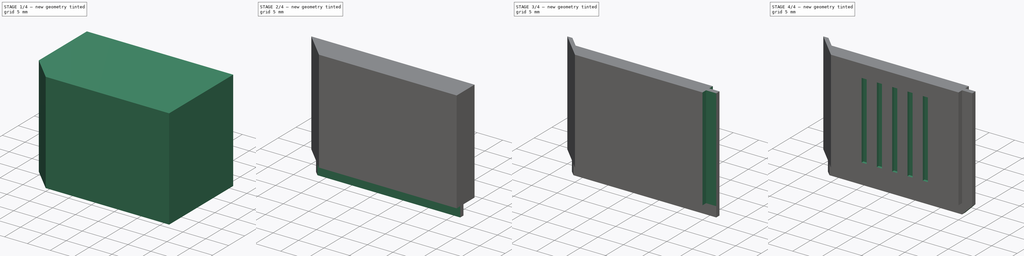
[diagram: build sequence overview — one tinted view per stage of 4, left to right]
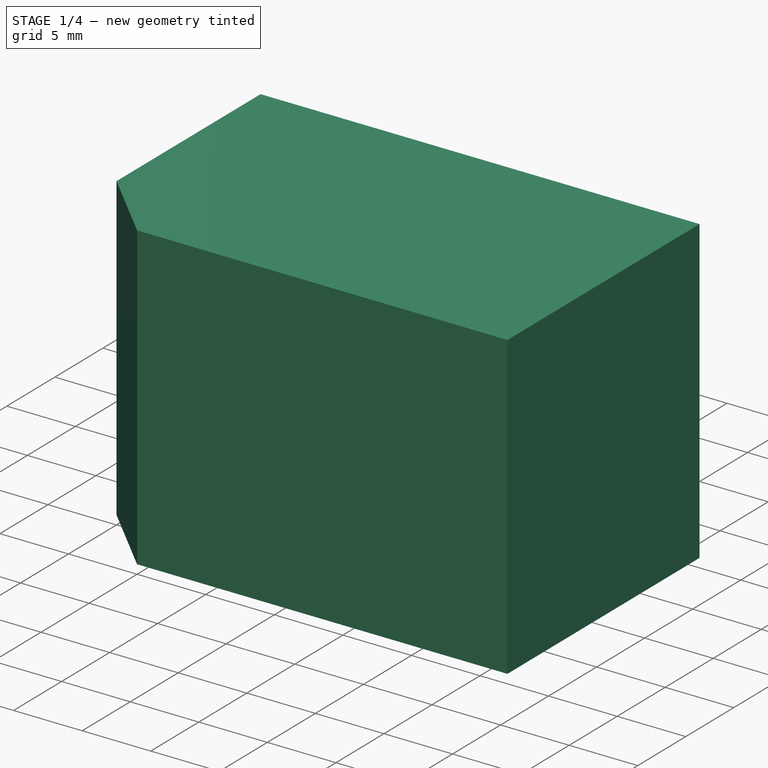
[diagram: stage 1 of 4 — iso view after this stage's code; geometry added in this stage tinted green]
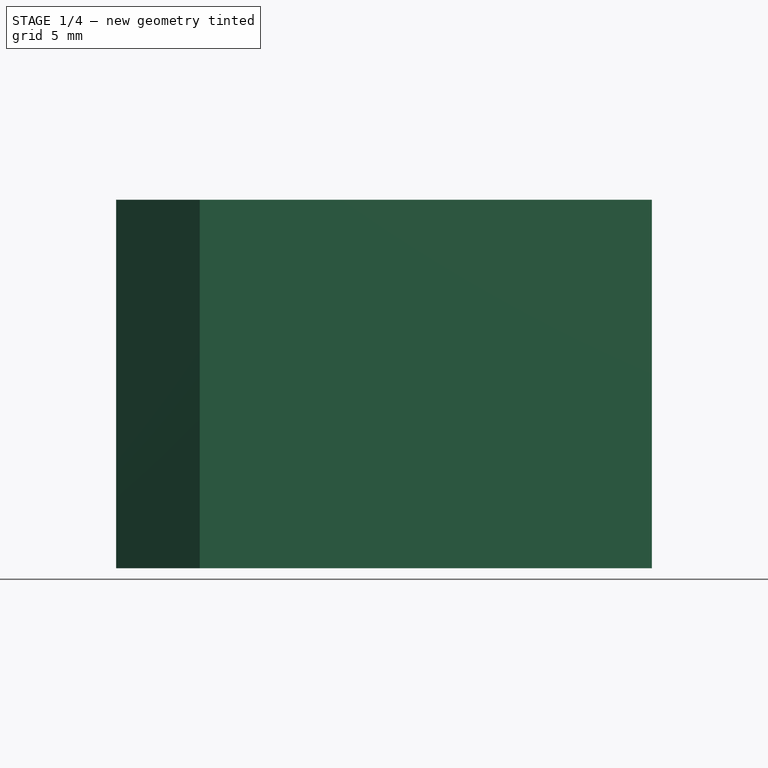
[diagram: stage 1 of 4 — front view after this stage's code; geometry added in this stage tinted green]
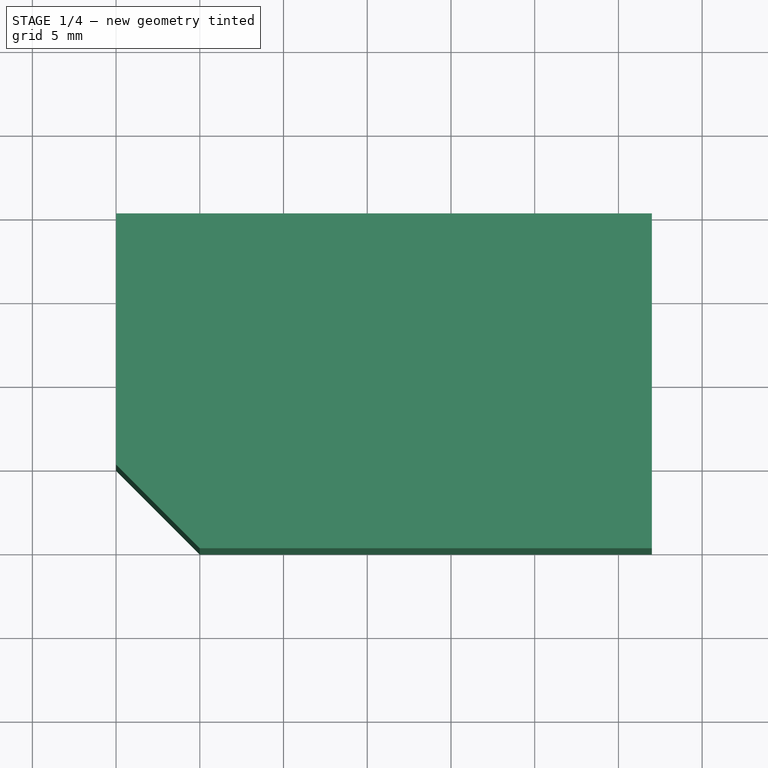
[diagram: stage 1 of 4 — top view after this stage's code; geometry added in this stage tinted green]
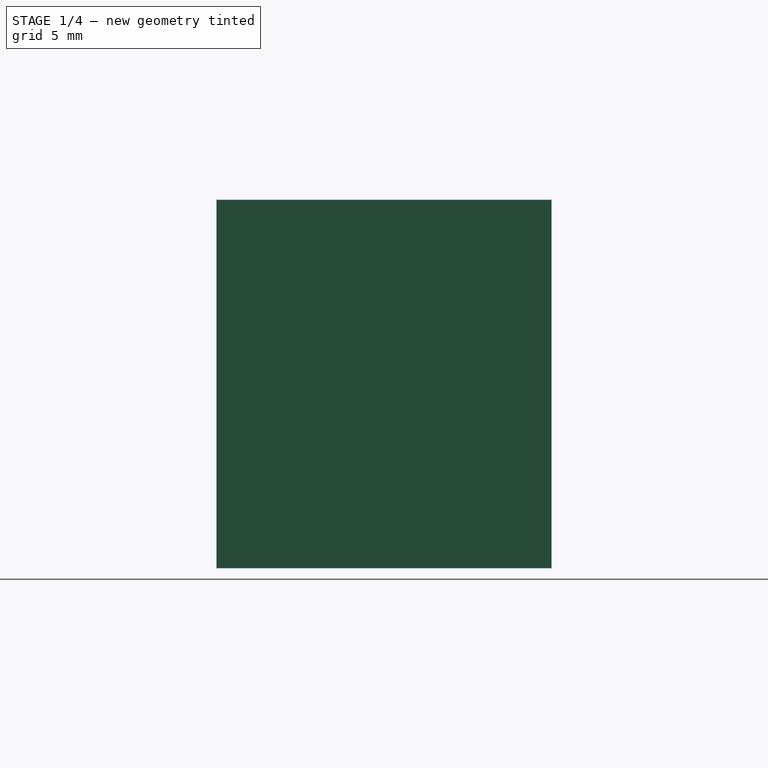
[diagram: stage 1 of 4 — right view after this stage's code; geometry added in this stage tinted green]
FCSTD DOCUMENT  (FreeCAD 0.16R6712 (Git))
Label: battery-door
License: All rights reserved
LicenseURL: http://en.wikipedia.org/wiki/All_rights_reserved
objects: Sketcher::SketchObject×8, PartDesign::Pocket×6, PartDesign::Pad×2, PartDesign::Chamfer×2
note: 26 computed .brp shape members not serialized (recipe doc carries the construction recipe); baked Part::Feature solids carry a one-line shape summary decoded from their .brp

FEATURE [Sketcher::SketchObject] Sketch
  sketch-geometry (4):
    g0: LineSegment StartX=0 StartY=0 StartZ=0 EndX=32 EndY=0 EndZ=0
    g1: LineSegment StartX=32 StartY=0 StartZ=0 EndX=32 EndY=-20 EndZ=0
    g2: LineSegment StartX=32 StartY=-20 StartZ=0 EndX=0 EndY=-20 EndZ=0
    g3: LineSegment StartX=0 StartY=-20 StartZ=0 EndX=0 EndY=0 EndZ=0
  constraints (11):
    c: Coincident(g0,g1)
    c: Coincident(g1,g2)
    c: Coincident(g2,g3)
    c: Coincident(g3,g0)
    c: Horizontal(g0)
    c: Horizontal(g2)
    c: Vertical(g1)
    c: Vertical(g3)
    c: Coincident(g0,g-1)
    c: DistanceX(g0,g0) = 32
    c: DistanceY(g3,g3) = 20
FEATURE [PartDesign::Pad] Pad
  Length = 22
  Length2 = 100
  Sketch = -> Sketch
  Type = 0
FEATURE [PartDesign::Chamfer] Chamfer
  Base = -> Pad [Edge8]
  Size = 5
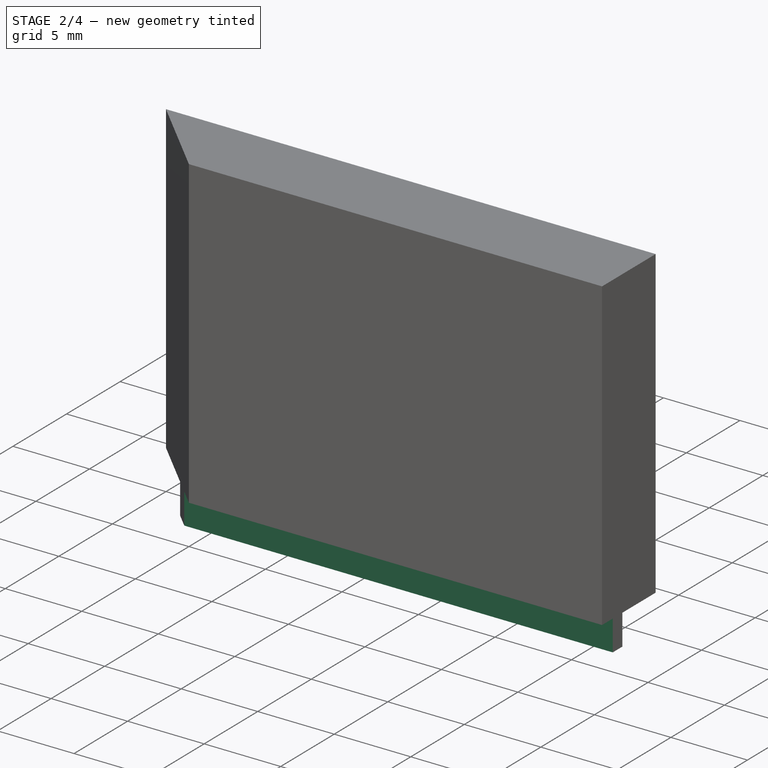
[diagram: stage 2 of 4 — iso view after this stage's code; geometry added in this stage tinted green]
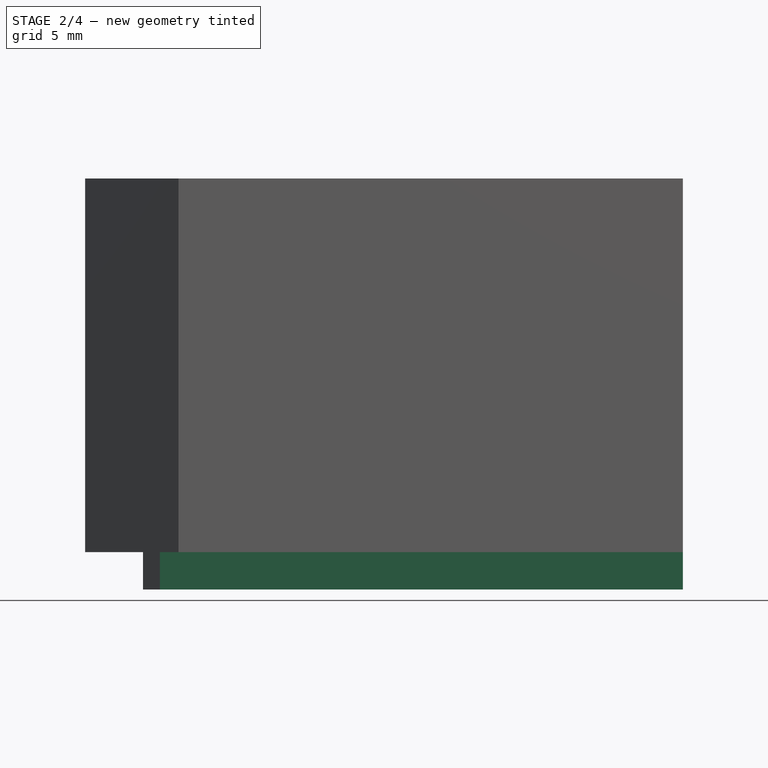
[diagram: stage 2 of 4 — front view after this stage's code; geometry added in this stage tinted green]
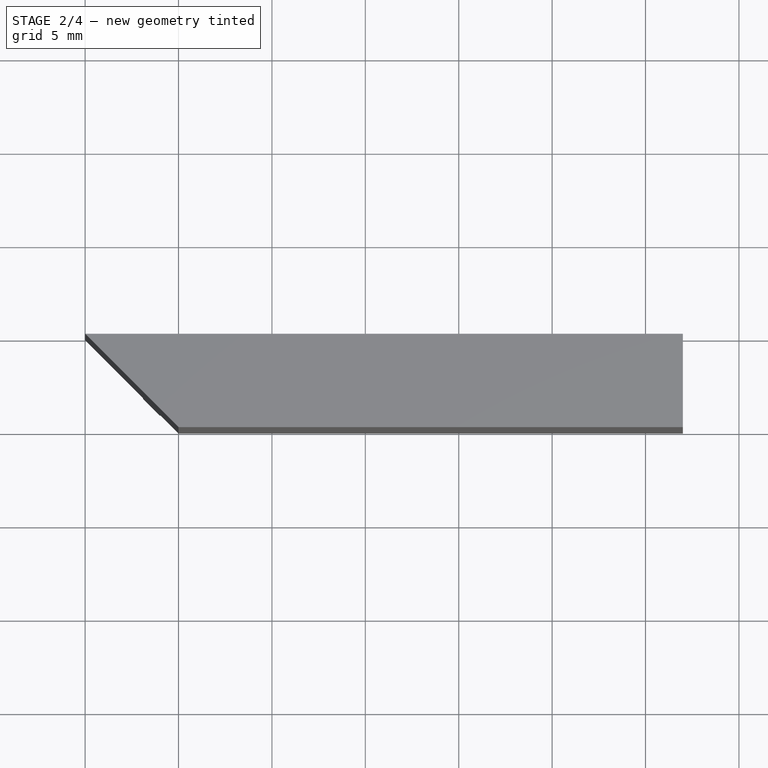
[diagram: stage 2 of 4 — top view after this stage's code; geometry added in this stage tinted green]
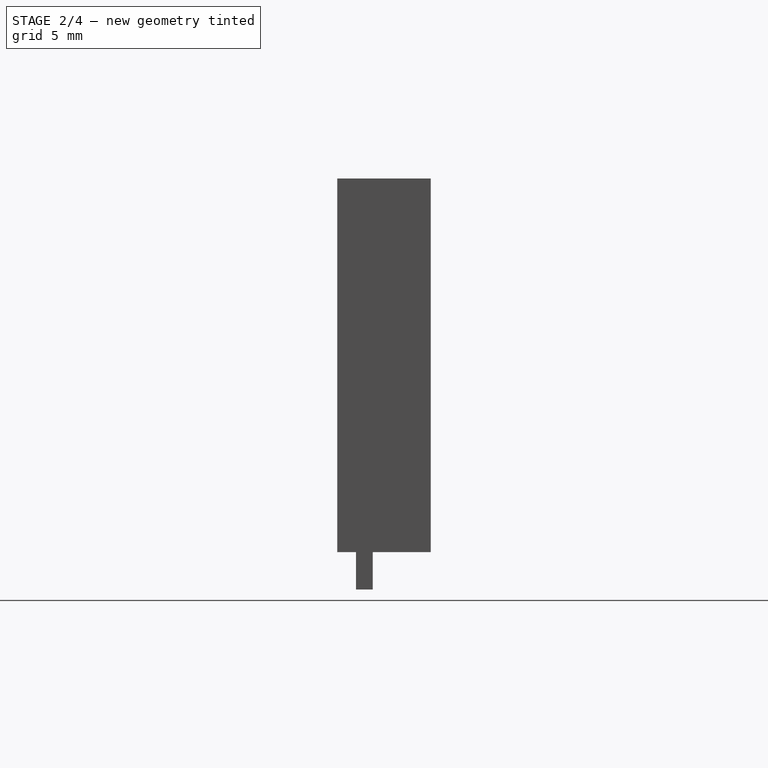
[diagram: stage 2 of 4 — right view after this stage's code; geometry added in this stage tinted green]
FEATURE [Sketcher::SketchObject] Sketch001
  ExternalGeometry = -> [Chamfer]
  Placement = pos=(0,0,22) rot=(0,0,1;0rad)
  Support = -> Chamfer [Face5]
  sketch-geometry (4):
    g0: LineSegment StartX=0 StartY=0 StartZ=0 EndX=32 EndY=0 EndZ=0
    g1: LineSegment StartX=32 StartY=0 StartZ=0 EndX=32 EndY=-15 EndZ=0
    g2: LineSegment StartX=32 StartY=-15 StartZ=0 EndX=0 EndY=-15 EndZ=0
    g3: LineSegment StartX=0 StartY=-15 StartZ=0 EndX=0 EndY=0 EndZ=0
  constraints (11):
    c: Coincident(g0,g1)
    c: Coincident(g1,g2)
    c: Coincident(g2,g3)
    c: Coincident(g3,g0)
    c: Horizontal(g0)
    c: Horizontal(g2)
    c: Vertical(g1)
    c: Vertical(g3)
    c: Coincident(g0,g-1)
    c: PointOnObject(g-3,g1)
    c: Coincident(g2,g-4)
FEATURE [PartDesign::Pocket] Pocket
  Length = 22
  Sketch = -> Sketch001
  Type = 0
FEATURE [Sketcher::SketchObject] Sketch002
  ExternalGeometry = -> [Pocket]
  Placement = pos=(0,0,0) rot=(1,0,0;3.14159rad)
  Support = -> Pocket [Face2]
  sketch-geometry (4):
    g0: LineSegment StartX=32 StartY=20 StartZ=0 EndX=0 EndY=20 EndZ=0
    g1: LineSegment StartX=0 StartY=20 StartZ=0 EndX=0 EndY=19 EndZ=0
    g2: LineSegment StartX=0 StartY=19 StartZ=0 EndX=32 EndY=19 EndZ=0
    g3: LineSegment StartX=32 StartY=19 StartZ=0 EndX=32 EndY=20 EndZ=0
  constraints (11):
    c: Coincident(g0,g1)
    c: Coincident(g1,g2)
    c: Coincident(g2,g3)
    c: Coincident(g3,g0)
    c: Horizontal(g0)
    c: Horizontal(g2)
    c: Vertical(g1)
    c: Vertical(g3)
    c: Coincident(g0,g-3)
    c: PointOnObject(g1,g-2)
    c: DistanceY(g1,g1) = 1
FEATURE [PartDesign::Pocket] Pocket001
  Length = 2
  Sketch = -> Sketch002
  Type = 0
FEATURE [Sketcher::SketchObject] Sketch003
  ExternalGeometry = -> [Pocket001]
  Placement = pos=(0,0,0) rot=(1,0,0;3.14159rad)
  Support = -> Pocket001 [Face7]
  sketch-geometry (4):
    g0: LineSegment StartX=32 StartY=18.1 StartZ=0 EndX=0 EndY=18.1 EndZ=0
    g1: LineSegment StartX=0 StartY=18.1 StartZ=0 EndX=0 EndY=15 EndZ=0
    g2: LineSegment StartX=0 StartY=15 StartZ=0 EndX=32 EndY=15 EndZ=0
    g3: LineSegment StartX=32 StartY=15 StartZ=0 EndX=32 EndY=18.1 EndZ=0
  constraints (12):
    c: Coincident(g0,g1)
    c: Coincident(g1,g2)
    c: Coincident(g2,g3)
    c: Coincident(g3,g0)
    c: Horizontal(g0)
    c: Horizontal(g2)
    c: Vertical(g1)
    c: Vertical(g3)
    c: PointOnObject(g0,g-3)
    c: PointOnObject(g1,g-2)
    c: Coincident(g-3,g2)
    c: DistanceY(g0,g-3) = 0.9
FEATURE [PartDesign::Pocket] Pocket002
  Length = 2
  Sketch = -> Sketch003
  Type = 0
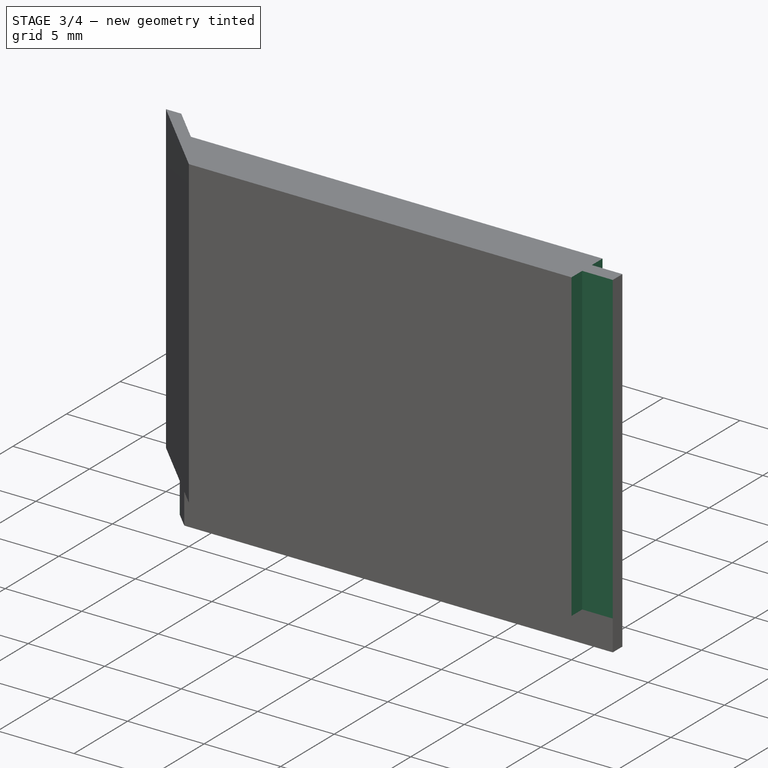
[diagram: stage 3 of 4 — iso view after this stage's code; geometry added in this stage tinted green]
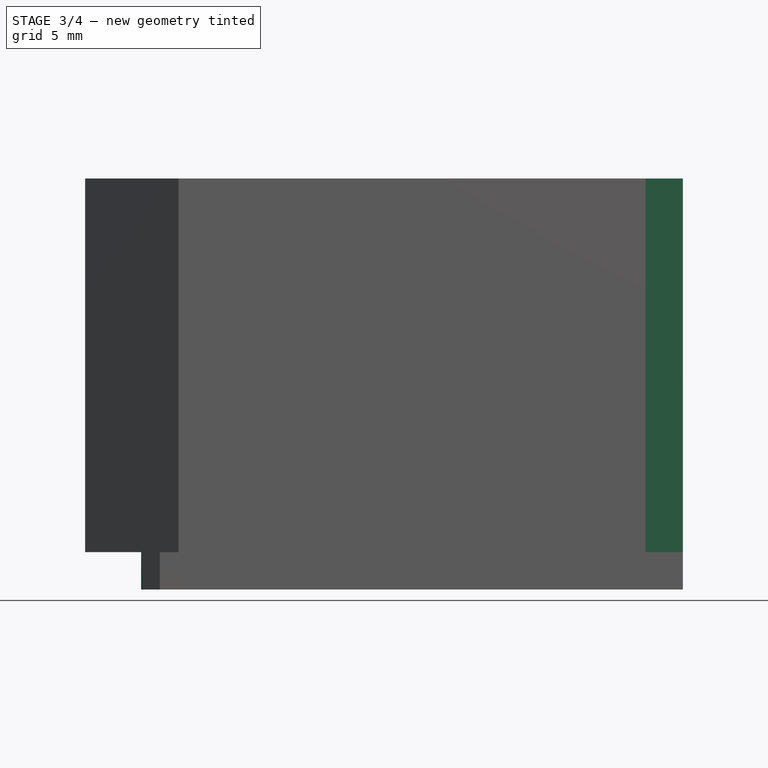
[diagram: stage 3 of 4 — front view after this stage's code; geometry added in this stage tinted green]
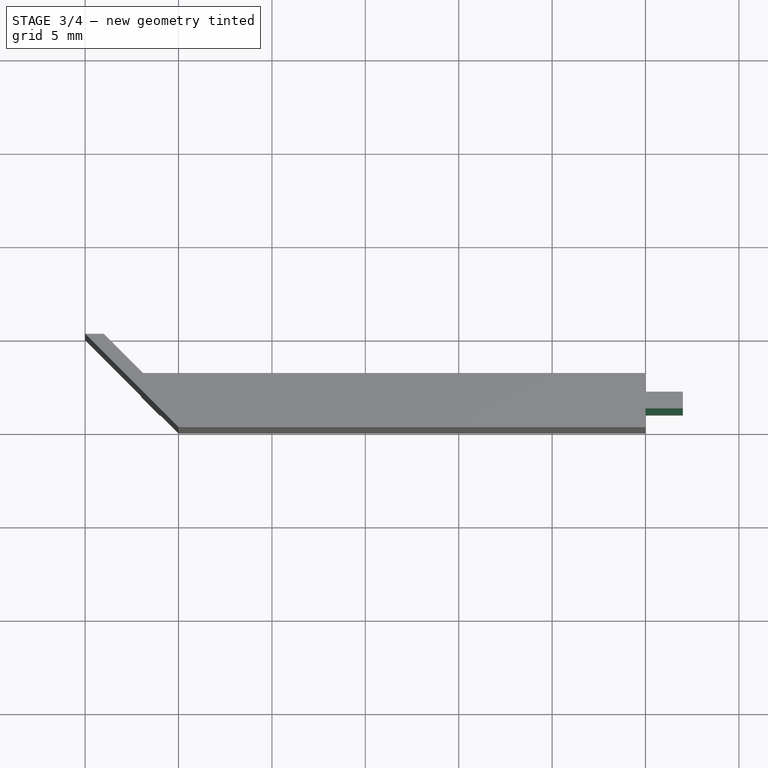
[diagram: stage 3 of 4 — top view after this stage's code; geometry added in this stage tinted green]
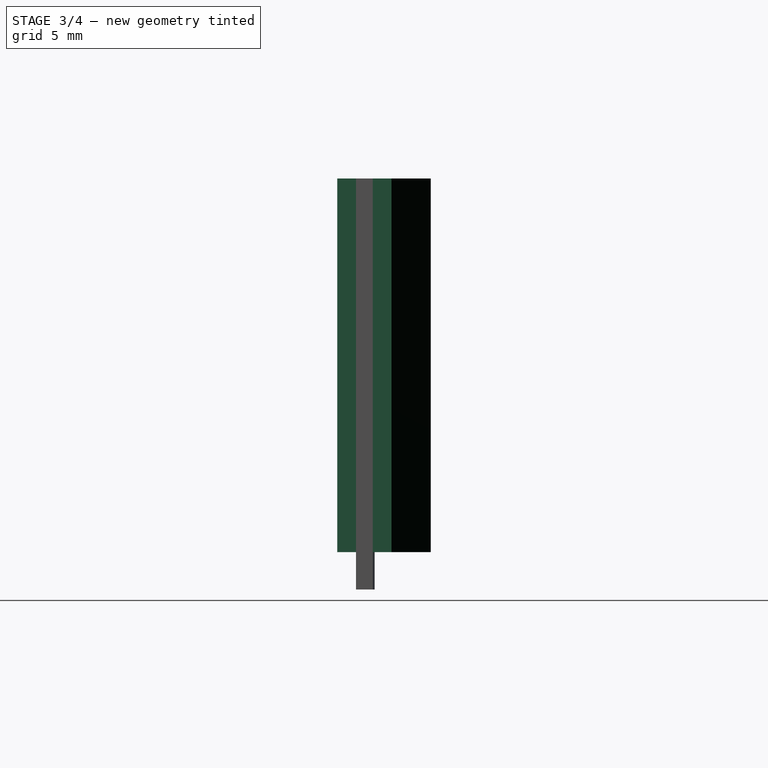
[diagram: stage 3 of 4 — right view after this stage's code; geometry added in this stage tinted green]
FEATURE [Sketcher::SketchObject] Sketch004
  ExternalGeometry = -> [Pocket002]
  Placement = pos=(0,0,2) rot=(1,0,0;3.14159rad)
  Support = -> Pocket002 [Face9]
  sketch-geometry (8):
    g0: LineSegment StartX=32 StartY=20 StartZ=0 EndX=30 EndY=20 EndZ=0
    g1: LineSegment StartX=30 StartY=20 StartZ=0 EndX=30 EndY=19 EndZ=0
    g2: LineSegment StartX=30 StartY=19 StartZ=0 EndX=32 EndY=19 EndZ=0
    g3: LineSegment StartX=32 StartY=19 StartZ=0 EndX=32 EndY=20 EndZ=0
    g4: LineSegment StartX=32 StartY=18.1 StartZ=0 EndX=30 EndY=18.1 EndZ=0
    g5: LineSegment StartX=30 StartY=18.1 StartZ=0 EndX=30 EndY=15 EndZ=0
    g6: LineSegment StartX=30 StartY=15 StartZ=0 EndX=32 EndY=15 EndZ=0
    g7: LineSegment StartX=32 StartY=15 StartZ=0 EndX=32 EndY=18.1 EndZ=0
  constraints (22):
    c: Coincident(g0,g1)
    c: Coincident(g1,g2)
    c: Coincident(g2,g3)
    c: Coincident(g3,g0)
    c: Horizontal(g0)
    c: Horizontal(g2)
    c: Vertical(g1)
    c: Vertical(g3)
    c: Coincident(g0,g-3)
    c: Coincident(g2,g-3)
    c: DistanceX(g0,g0) = 2
    c: Coincident(g4,g5)
    c: Coincident(g5,g6)
    c: Coincident(g6,g7)
    c: Coincident(g7,g4)
    c: Horizontal(g4)
    c: Horizontal(g6)
    c: Vertical(g5)
    c: Vertical(g7)
    c: Coincident(g4,g-4)
    c: Coincident(g-4,g6)
    c: PointOnObject(g1,g5)
FEATURE [PartDesign::Pocket] Pocket003
  Length = 20
  Sketch = -> Sketch004
  Type = 0
FEATURE [Sketcher::SketchObject] Sketch005
  ExternalGeometry = -> [Pocket003]
  Placement = pos=(0,0,2) rot=(1,0,0;3.14159rad)
  Support = -> Pocket003 [Face9]
  sketch-geometry (3):
    g0: LineSegment StartX=3.1 StartY=18.1 StartZ=0 EndX=3 EndY=18 EndZ=0
    g1: LineSegment StartX=3 StartY=18 StartZ=0 EndX=5.0281 EndY=18.1 EndZ=0
    g2: LineSegment StartX=5.0281 StartY=18.1 StartZ=0 EndX=3.1 EndY=18.1 EndZ=0
  constraints (7):
    c: Coincident(g-4,g0)
    c: PointOnObject(g0,g-4)
    c: Coincident(g0,g1)
    c: PointOnObject(g1,g-3)
    c: Coincident(g1,g2)
    c: Coincident(g2,g0)
    c: DistanceY(g0,g0) = 0.1
FEATURE [PartDesign::Pad] Pad001
  Length = 2
  Length2 = 100
  Sketch = -> Sketch005
  Type = 0
FEATURE [Sketcher::SketchObject] Sketch006
  ExternalGeometry = -> [Pad001]
  Placement = pos=(0,0,2) rot=(1,0,0;3.14159rad)
  Support = -> Pad001 [Face9]
  sketch-geometry (4):
    g0: LineSegment StartX=30 StartY=15 StartZ=0 EndX=1 EndY=15 EndZ=0
    g1: LineSegment StartX=1 StartY=15 StartZ=0 EndX=3.1 EndY=17.1 EndZ=0
    g2: LineSegment StartX=3.1 StartY=17.1 StartZ=0 EndX=30 EndY=17.1 EndZ=0
    g3: LineSegment StartX=30 StartY=17.1 StartZ=0 EndX=30 EndY=15 EndZ=0
  constraints (11):
    c: Coincident(g-3,g0)
    c: PointOnObject(g0,g-3)
    c: Coincident(g0,g1)
    c: Coincident(g1,g2)
    c: Horizontal(g2)
    c: Coincident(g2,g3)
    c: Coincident(g3,g0)
    c: Vertical(g3)
    c: DistanceX(g-3,g0) = 1
    c: Parallel(g1,g-4)
    c: DistanceY(g1,g-5) = 1
FEATURE [PartDesign::Pocket] Pocket004
  Length = 20
  Sketch = -> Sketch006
  Type = 0
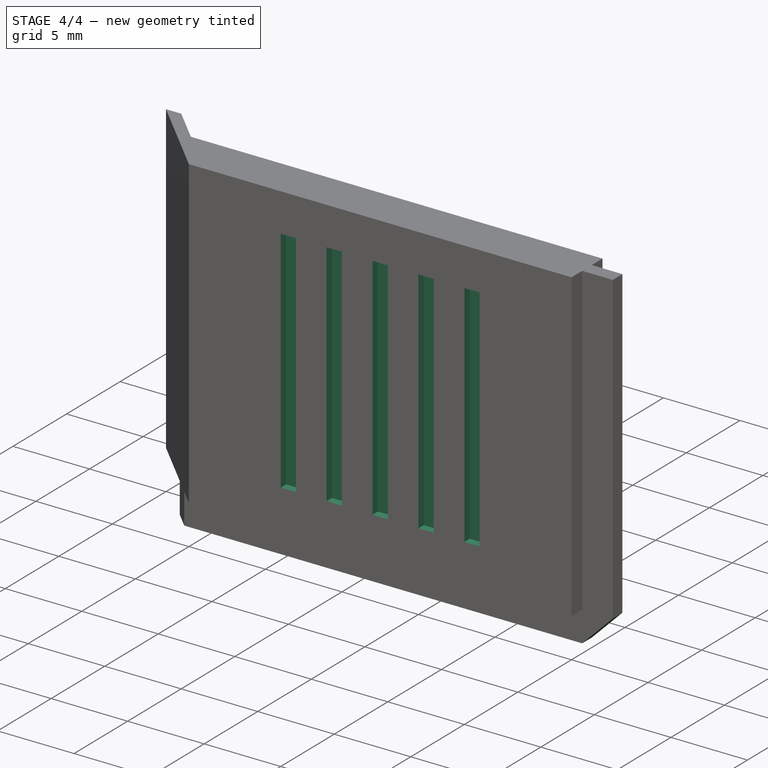
[diagram: stage 4 of 4 — iso view after this stage's code; geometry added in this stage tinted green]
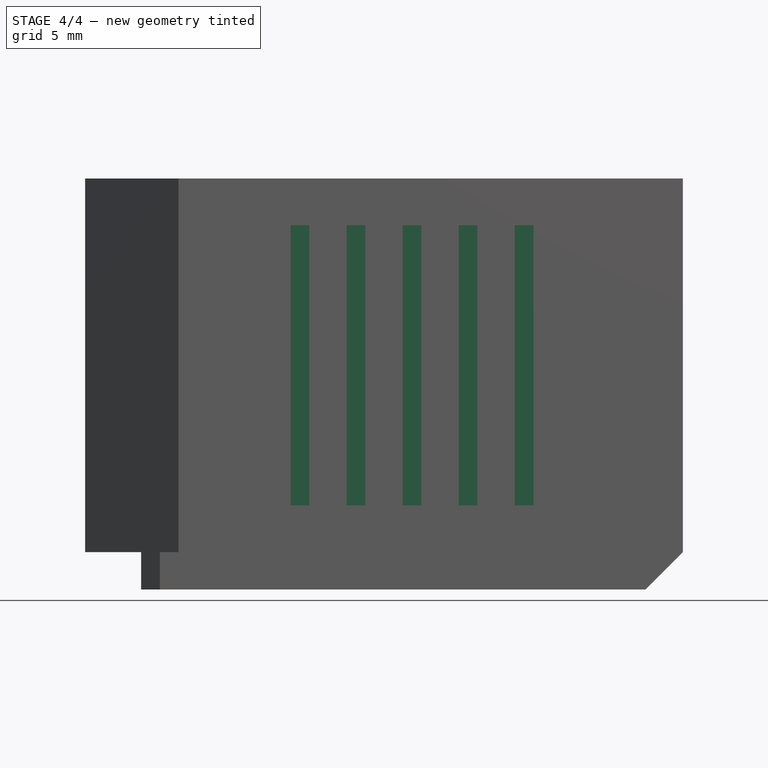
[diagram: stage 4 of 4 — front view after this stage's code; geometry added in this stage tinted green]
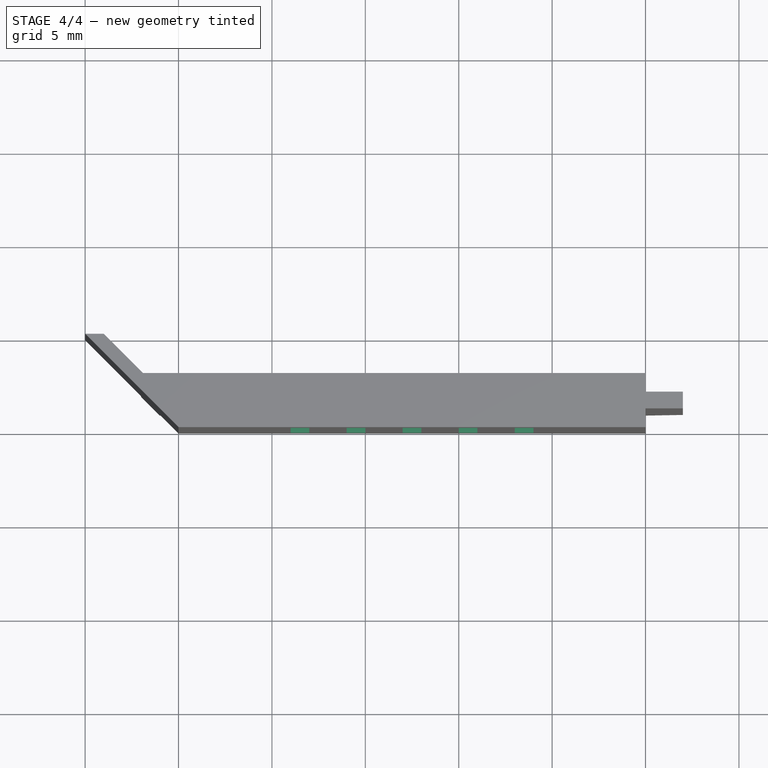
[diagram: stage 4 of 4 — top view after this stage's code; geometry added in this stage tinted green]
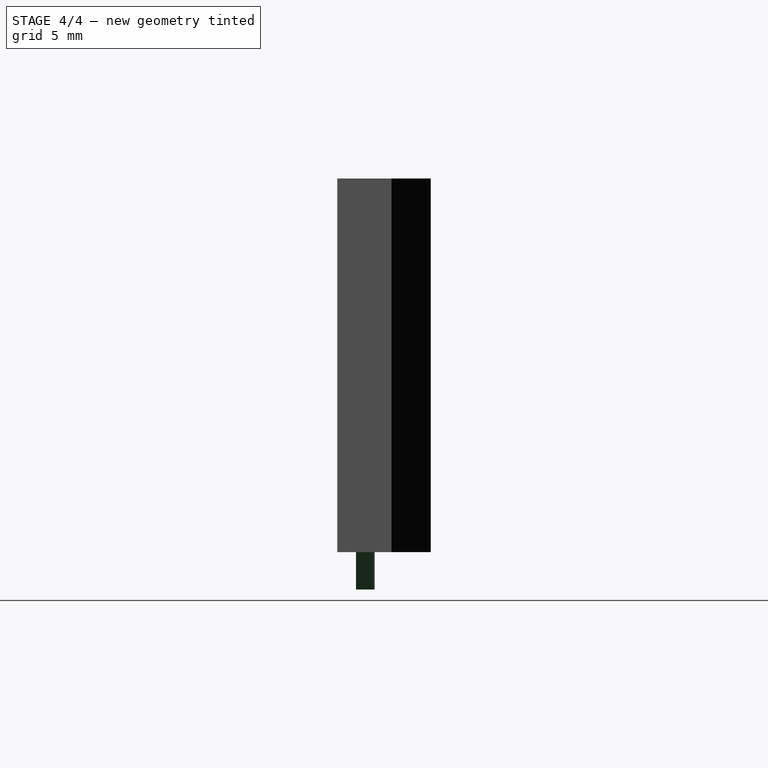
[diagram: stage 4 of 4 — right view after this stage's code; geometry added in this stage tinted green]
FEATURE [Sketcher::SketchObject] Sketch007
  ExternalGeometry = -> [Pocket004]
  Placement = pos=(0,-20,0) rot=(1,0,0;1.5708rad)
  Support = -> Pocket004 [Face1]
  sketch-geometry (28):
    g0: LineSegment StartX=11 StartY=19.5 StartZ=0 EndX=12 EndY=19.5 EndZ=0
    g1: LineSegment StartX=12 StartY=19.5 StartZ=0 EndX=12 EndY=4.5 EndZ=0
    g2: LineSegment StartX=12 StartY=4.5 StartZ=0 EndX=11 EndY=4.5 EndZ=0
    g3: LineSegment StartX=11 StartY=4.5 StartZ=0 EndX=11 EndY=19.5 EndZ=0
    g4: LineSegment StartX=14 StartY=19.5 StartZ=0 EndX=15 EndY=19.5 EndZ=0
    g5: LineSegment StartX=15 StartY=19.5 StartZ=0 EndX=15 EndY=4.5 EndZ=0
    g6: LineSegment StartX=15 StartY=4.5 StartZ=0 EndX=14 EndY=4.5 EndZ=0
    g7: LineSegment StartX=14 StartY=4.5 StartZ=0 EndX=14 EndY=19.5 EndZ=0
    g8: LineSegment StartX=17 StartY=19.5 StartZ=0 EndX=18 EndY=19.5 EndZ=0
    g9: LineSegment StartX=18 StartY=19.5 StartZ=0 EndX=18 EndY=4.5 EndZ=0
    g10: LineSegment StartX=18 StartY=4.5 StartZ=0 EndX=17 EndY=4.5 EndZ=0
    g11: LineSegment StartX=17 StartY=4.5 StartZ=0 EndX=17 EndY=19.5 EndZ=0
    g12: LineSegment StartX=20 StartY=19.5 StartZ=0 EndX=21 EndY=19.5 EndZ=0
    g13: LineSegment StartX=21 StartY=19.5 StartZ=0 EndX=21 EndY=4.5 EndZ=0
    g14: LineSegment StartX=21 StartY=4.5 StartZ=0 EndX=20 EndY=4.5 EndZ=0
    g15: LineSegment StartX=20 StartY=4.5 StartZ=0 EndX=20 EndY=19.5 EndZ=0
    g16: LineSegment StartX=23 StartY=19.5 StartZ=0 EndX=24 EndY=19.5 EndZ=0
    g17: LineSegment StartX=24 StartY=19.5 StartZ=0 EndX=24 EndY=4.5 EndZ=0
    g18: LineSegment StartX=24 StartY=4.5 StartZ=0 EndX=23 EndY=4.5 EndZ=0
    g19: LineSegment StartX=23 StartY=4.5 StartZ=0 EndX=23 EndY=19.5 EndZ=0
    g20: LineSegment [constr] StartX=5 StartY=22 StartZ=0 EndX=11 EndY=19.5 EndZ=0
    g21: LineSegment [constr] StartX=11 StartY=4.5 StartZ=0 EndX=5 EndY=2 EndZ=0
    g22: LineSegment [constr] StartX=12 StartY=19.5 StartZ=0 EndX=14 EndY=19.5 EndZ=0
    g23: LineSegment [constr] StartX=15 StartY=19.5 StartZ=0 EndX=17 EndY=19.5 EndZ=0
    g24: LineSegment [constr] StartX=18 StartY=19.5 StartZ=0 EndX=20 EndY=19.5 EndZ=0
    g25: LineSegment [constr] StartX=21 StartY=19.5 StartZ=0 EndX=23 EndY=19.5 EndZ=0
    g26: LineSegment [constr] StartX=30 StartY=22 StartZ=0 EndX=24 EndY=19.5 EndZ=0
    g27: LineSegment [constr] StartX=30 StartY=2 StartZ=0 EndX=24 EndY=4.5 EndZ=0
  constraints (77):
    c: Coincident(g0,g1)
    c: Coincident(g1,g2)
    c: Coincident(g2,g3)
    c: Coincident(g3,g0)
    c: Horizontal(g0)
    c: Horizontal(g2)
    c: Vertical(g1)
    c: Vertical(g3)
    c: Coincident(g4,g5)
    c: Coincident(g5,g6)
    c: Coincident(g6,g7)
    c: Coincident(g7,g4)
    c: Horizontal(g4)
    c: Horizontal(g6)
    c: Vertical(g5)
    c: Vertical(g7)
    c: Coincident(g8,g9)
    c: Coincident(g9,g10)
    c: Coincident(g10,g11)
    c: Coincident(g11,g8)
    c: Horizontal(g8)
    c: Horizontal(g10)
    c: Vertical(g9)
    c: Vertical(g11)
    c: Coincident(g12,g13)
    c: Coincident(g13,g14)
    c: Coincident(g14,g15)
    c: Coincident(g15,g12)
    c: Horizontal(g12)
    c: Horizontal(g14)
    c: Vertical(g13)
    c: Vertical(g15)
    c: Coincident(g16,g17)
    c: Coincident(g17,g18)
    c: Coincident(g18,g19)
    c: Coincident(g19,g16)
    c: Horizontal(g16)
    c: Horizontal(g18)
    c: Vertical(g17)
    c: Vertical(g19)
    c: PointOnObject(g4,g0)
    c: PointOnObject(g8,g4)
    c: PointOnObject(g12,g8)
    c: PointOnObject(g16,g12)
    c: PointOnObject(g6,g2)
    c: PointOnObject(g10,g6)
    c: PointOnObject(g14,g10)
    c: PointOnObject(g18,g14)
    c: Equal(g0,g4)
    c: Equal(g4,g8)
    c: Equal(g8,g12)
    c: Equal(g12,g16)
    c: Coincident(g20,g-3)
    c: Coincident(g20,g0)
    c: Coincident(g21,g2)
    c: Coincident(g21,g-4)
    c: Equal(g20,g21)
    c: DistanceY(g3,g3) = 15
    c: Coincident(g22,g0)
    c: Coincident(g22,g4)
    c: Coincident(g23,g4)
    c: Coincident(g23,g8)
    c: Coincident(g24,g8)
    c: Coincident(g24,g12)
    c: Coincident(g25,g12)
    c: Coincident(g25,g16)
    c: Equal(g22,g23)
    c: Equal(g23,g24)
    c: Equal(g24,g25)
    c: DistanceX(g22,g22) = 2
    c: DistanceX(g0,g0) = 1
    c: Coincident(g26,g-3)
    c: Coincident(g26,g16)
    c: Coincident(g27,g-4)
    c: Coincident(g27,g17)
    c: Equal(g26,g27)
    c: Equal(g27,g21)
FEATURE [PartDesign::Pocket] Pocket005
  Length = 0.5
  Sketch = -> Sketch007
  Type = 0
FEATURE [PartDesign::Chamfer] Chamfer001
  Base = -> Pocket005 [Edge89]
  Size = 2
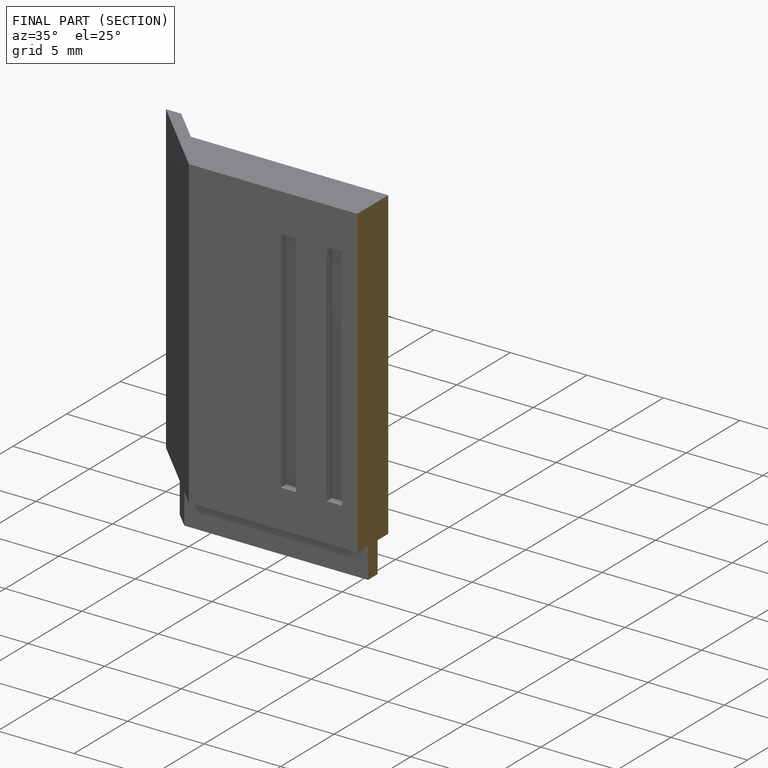
[diagram: finished part — half-section view (interior)]
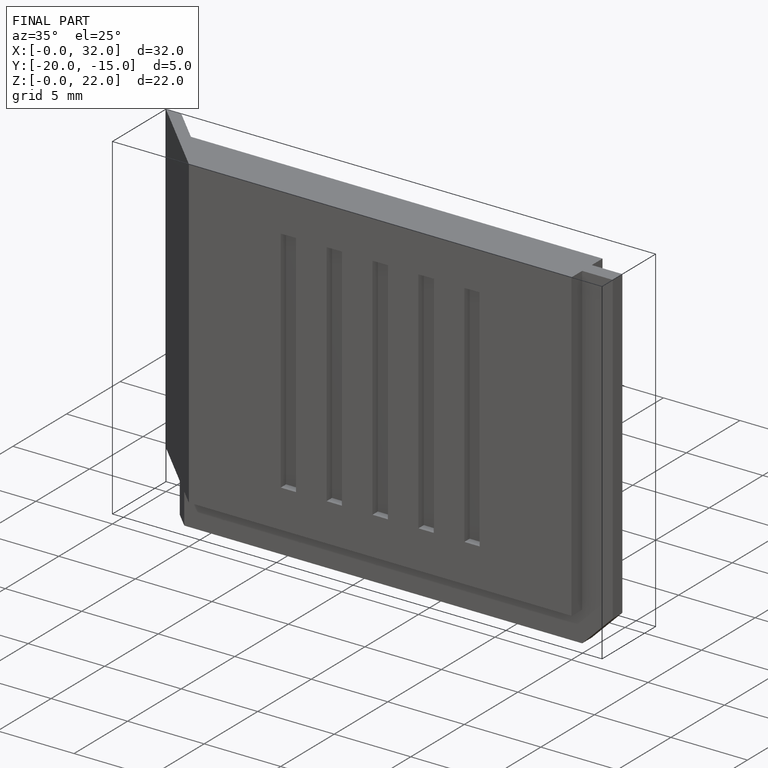
[diagram: finished part — iso view with bounding-box wireframe]
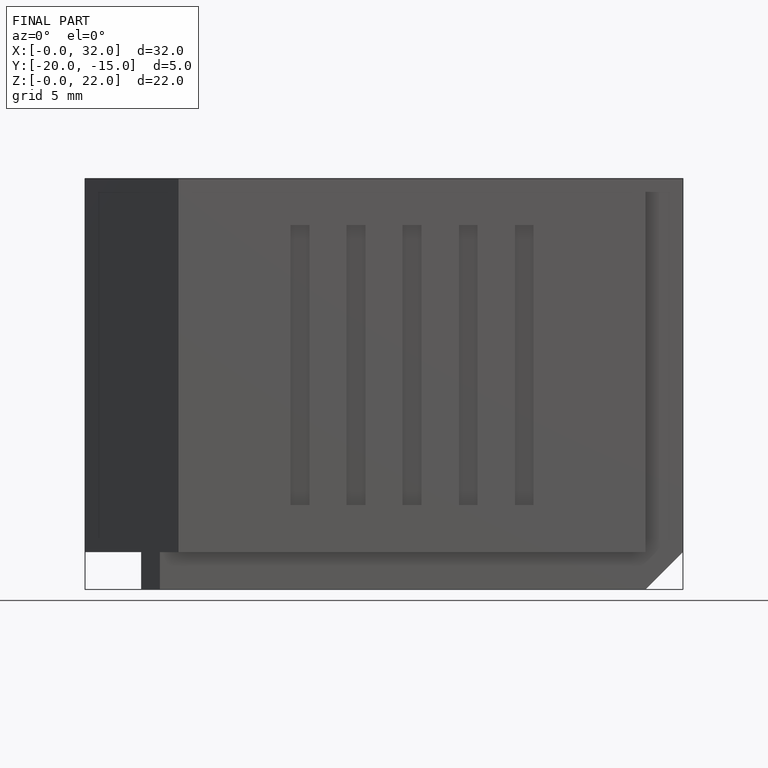
[diagram: finished part — front view with bounding-box wireframe]
